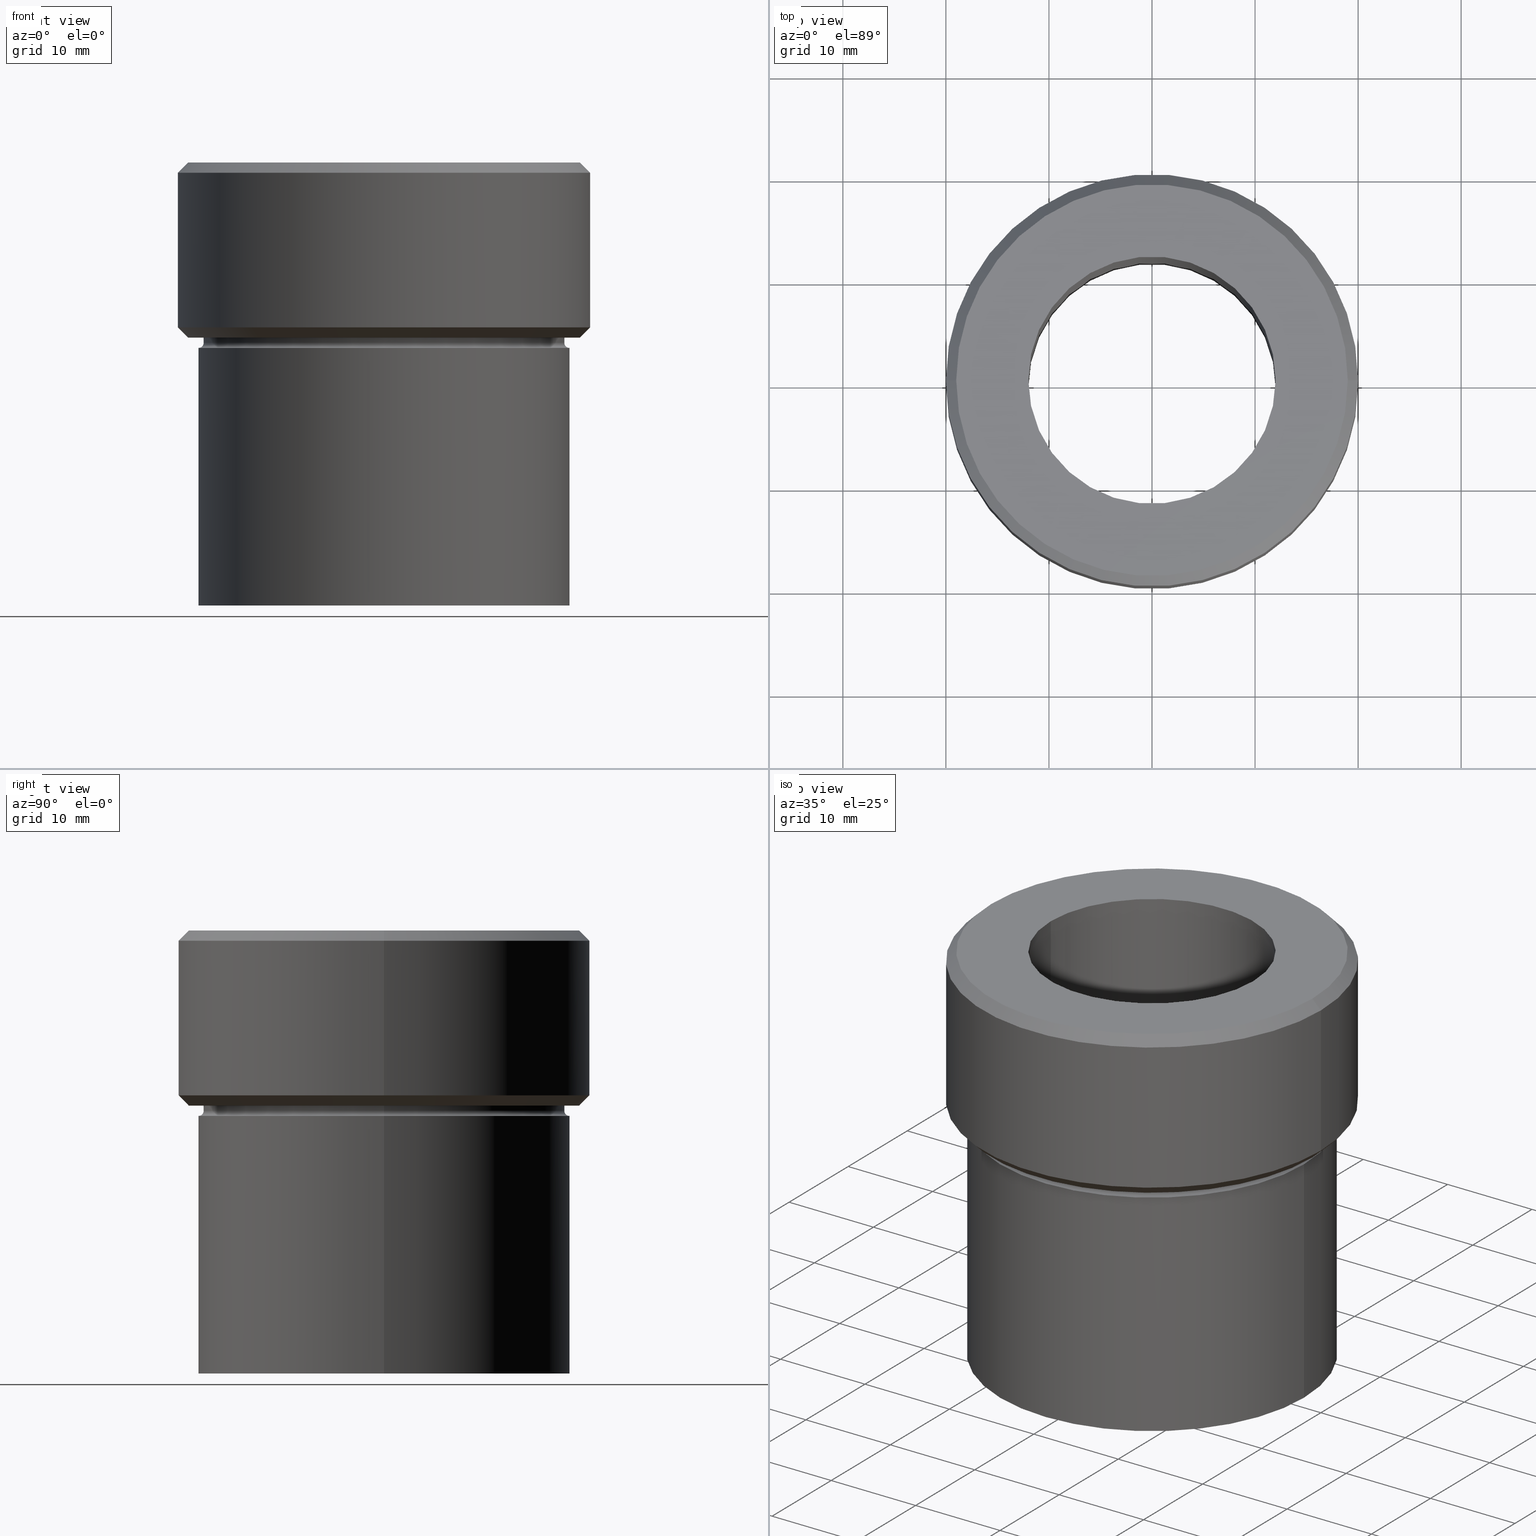
[diagram: canonical four-view strip — front | top / right | iso, engineering-drawing reading convention]
A machine part, canonical four-view strip (front | top / right | iso — engineering-drawing reading convention). The complete STEP part file that produces these views, byte-faithful:
ISO-10303-21;
HEADER;
FILE_DESCRIPTION (( 'STEP AP203' ),
    '1' );
FILE_NAME ('ad10.STEP',
    '2024-01-08T12:25:25',
    ( '' ),
    ( '' ),
    'SwSTEP 2.0',
    'SolidWorks 2019',
    '' );
FILE_SCHEMA (( 'CONFIG_CONTROL_DESIGN' ));
ENDSEC;

DATA;
#1 = EDGE_CURVE ( 'NONE', #331, #24, #38, .T. ) ;
#2 = CARTESIAN_POINT ( 'NONE',  ( -17.49999999999999645, 2.143131898507867854E-15, 0.000000000000000000 ) ) ;
#3 = AXIS2_PLACEMENT_3D ( 'NONE', #427, #395, #222 ) ;
#4 = AXIS2_PLACEMENT_3D ( 'NONE', #495, #94, #450 ) ;
#5 = VERTEX_POINT ( 'NONE', #58 ) ;
#6 = CARTESIAN_POINT ( 'NONE',  ( -12.00000000000000178, 1.469576158976824144E-15, -54.99999999999999289 ) ) ;
#7 = EDGE_LOOP ( 'NONE', ( #312, #87, #115, #275 ) ) ;
#8 = DIRECTION ( 'NONE',  ( -0.000000000000000000, -0.000000000000000000, 1.000000000000000000 ) ) ;
#9 = ORIENTED_EDGE ( 'NONE', *, *, #496, .F. ) ;
#10 = DIRECTION ( 'NONE',  ( -0.000000000000000000, -0.000000000000000000, 1.000000000000000000 ) ) ;
#11 = ORIENTED_EDGE ( 'NONE', *, *, #282, .T. ) ;
#12 = AXIS2_PLACEMENT_3D ( 'NONE', #287, #320, #318 ) ;
#13 = AXIS2_PLACEMENT_3D ( 'NONE', #267, #147, #467 ) ;
#14 = MECHANICAL_CONTEXT ( 'NONE', #219, 'mechanical' ) ;
#15 = EDGE_LOOP ( 'NONE', ( #244, #302 ) ) ;
#16 = PERSON_AND_ORGANIZATION ( #179, #359 ) ;
#17 = DIRECTION ( 'NONE',  ( -0.000000000000000000, -0.000000000000000000, 1.000000000000000000 ) ) ;
#18 = DIRECTION ( 'NONE',  ( 1.000000000000000000, 0.000000000000000000, 0.000000000000000000 ) ) ;
#19 = FACE_OUTER_BOUND ( 'NONE', #497, .T. ) ;
#20 = AXIS2_PLACEMENT_3D ( 'NONE', #148, #471, #431 ) ;
#21 = CIRCLE ( 'NONE', #13, 18.00000000000000355 ) ;
#22 = DATE_AND_TIME ( #57, #423 ) ;
#23 = DIRECTION ( 'NONE',  ( 1.000000000000000000, 0.000000000000000000, 0.000000000000000000 ) ) ;
#24 = VERTEX_POINT ( 'NONE', #67 ) ;
#25 = FACE_OUTER_BOUND ( 'NONE', #7, .T. ) ;
#26 = ADVANCED_FACE ( 'NONE', ( #228 ), #434, .T. ) ;
#27 = EDGE_LOOP ( 'NONE', ( #300, #136, #283, #263 ) ) ;
#28 = EDGE_LOOP ( 'NONE', ( #517, #291, #418, #472 ) ) ;
#29 = ORIENTED_EDGE ( 'NONE', *, *, #273, .F. ) ;
#30 = VECTOR ( 'NONE', #279, 1000.000000000000000 ) ;
#31 = AXIS2_PLACEMENT_3D ( 'NONE', #513, #308, #18 ) ;
#32 = CARTESIAN_POINT ( 'NONE',  ( 0.000000000000000000, 0.000000000000000000, 0.000000000000000000 ) ) ;
#33 = ORIENTED_EDGE ( 'NONE', *, *, #93, .T. ) ;
#34 = DESIGN_CONTEXT ( 'detailed design', #245, 'design' ) ;
#35 = EDGE_CURVE ( 'NONE', #5, #432, #145, .T. ) ;
#36 = DIRECTION ( 'NONE',  ( -0.000000000000000000, -0.000000000000000000, 1.000000000000000000 ) ) ;
#37 = CARTESIAN_POINT ( 'NONE',  ( 12.00000000000000178, 0.000000000000000000, -43.00000000000000000 ) ) ;
#38 = CIRCLE ( 'NONE', #200, 19.00000000000001066 ) ;
#39 = CIRCLE ( 'NONE', #4, 19.00000000000000355 ) ;
#40 = CARTESIAN_POINT ( 'NONE',  ( 0.000000000000000000, 0.000000000000000000, 0.000000000000000000 ) ) ;
#41 = FACE_OUTER_BOUND ( 'NONE', #170, .T. ) ;
#42 = DIRECTION ( 'NONE',  ( -0.000000000000000000, -0.000000000000000000, 1.000000000000000000 ) ) ;
#43 = VERTEX_POINT ( 'NONE', #180 ) ;
#44 = CC_DESIGN_PERSON_AND_ORGANIZATION_ASSIGNMENT ( #369, #120, ( #226 ) ) ;
#45 = CIRCLE ( 'NONE', #376, 17.49999999999999645 ) ;
#46 = DIRECTION ( 'NONE',  ( -0.000000000000000000, -0.000000000000000000, 1.000000000000000000 ) ) ;
#47 = TOROIDAL_SURFACE ( 'NONE', #519, 18.00000000000000000, 0.5000000000000000000 ) ;
#48 = ORIENTED_EDGE ( 'NONE', *, *, #307, .F. ) ;
#49 = EDGE_CURVE ( 'NONE', #271, #384, #501, .T. ) ;
#50 = CARTESIAN_POINT ( 'NONE',  ( -17.49999999999999645, 2.143131898507867854E-15, -17.00000000000000000 ) ) ;
#51 = ORIENTED_EDGE ( 'NONE', *, *, #307, .T. ) ;
#52 = DIRECTION ( 'NONE',  ( 0.000000000000000000, 0.000000000000000000, -1.000000000000000000 ) ) ;
#53 = VERTEX_POINT ( 'NONE', #61 ) ;
#54 = CARTESIAN_POINT ( 'NONE',  ( 0.000000000000000000, 0.000000000000000000, 0.000000000000000000 ) ) ;
#55 = ORIENTED_EDGE ( 'NONE', *, *, #351, .T. ) ;
#56 = VECTOR ( 'NONE', #306, 1000.000000000000000 ) ;
#57 = CALENDAR_DATE ( 2024, 8, 1 ) ;
#58 = CARTESIAN_POINT ( 'NONE',  ( -19.00000000000000355, 2.388061258337338939E-15, -17.00000000000000000 ) ) ;
#59 = ADVANCED_FACE ( 'NONE', ( #25 ), #389, .T. ) ;
#60 = DIRECTION ( 'NONE',  ( 0.000000000000000000, 0.000000000000000000, -1.000000000000000000 ) ) ;
#61 = CARTESIAN_POINT ( 'NONE',  ( 12.00000000000000178, 0.000000000000000000, 0.000000000000000000 ) ) ;
#62 = ADVANCED_FACE ( 'NONE', ( #69 ), #104, .F. ) ;
#63 = DIRECTION ( 'NONE',  ( -0.000000000000000000, -0.000000000000000000, 1.000000000000000000 ) ) ;
#64 = AXIS2_PLACEMENT_3D ( 'NONE', #32, #197, #445 ) ;
#65 = LOCAL_TIME ( 13, 25, 25.00000000000000000, #525 ) ;
#66 = DIRECTION ( 'NONE',  ( 1.000000000000000000, 0.000000000000000000, 0.000000000000000000 ) ) ;
#67 = CARTESIAN_POINT ( 'NONE',  ( 19.00000000000001066, 2.388061258337339728E-15, 0.000000000000000000 ) ) ;
#68 = ORIENTED_EDGE ( 'NONE', *, *, #518, .T. ) ;
#69 = FACE_OUTER_BOUND ( 'NONE', #252, .T. ) ;
#70 = APPROVAL ( #433, 'NEUR�EN�' ) ;
#71 = EDGE_LOOP ( 'NONE', ( #105, #132, #420, #193 ) ) ;
#72 = DIRECTION ( 'NONE',  ( -0.000000000000000000, -0.000000000000000000, 1.000000000000000000 ) ) ;
#73 = ORIENTED_EDGE ( 'NONE', *, *, #442, .T. ) ;
#74 = AXIS2_PLACEMENT_3D ( 'NONE', #341, #106, #304 ) ;
#75 = CARTESIAN_POINT ( 'NONE',  ( 0.000000000000000000, 0.000000000000000000, -17.49999999999999645 ) ) ;
#76 = PERSON_AND_ORGANIZATION ( #179, #359 ) ;
#77 = DIRECTION ( 'NONE',  ( -1.000000000000000000, 0.000000000000000000, 0.000000000000000000 ) ) ;
#78 = DIRECTION ( 'NONE',  ( 1.000000000000000000, 0.000000000000000000, 0.000000000000000000 ) ) ;
#79 = AXIS2_PLACEMENT_3D ( 'NONE', #161, #36, #523 ) ;
#80 = VECTOR ( 'NONE', #526, 1000.000000000000114 ) ;
#81 = CARTESIAN_POINT ( 'NONE',  ( -17.49999999999999645, 2.143131898507867854E-15, -17.49999999999999645 ) ) ;
#82 = EDGE_CURVE ( 'NONE', #432, #413, #398, .T. ) ;
#83 = CARTESIAN_POINT ( 'NONE',  ( -20.00000000000000000, 2.449293598294706513E-15, -16.00000000000000355 ) ) ;
#84 = ORIENTED_EDGE ( 'NONE', *, *, #194, .F. ) ;
#85 = CARTESIAN_POINT ( 'NONE',  ( 19.00000000000000355, 0.000000000000000000, -17.00000000000000000 ) ) ;
#86 = PRODUCT_DEFINITION_SHAPE ( 'NONE', 'NONE',  #238 ) ;
#87 = ORIENTED_EDGE ( 'NONE', *, *, #88, .F. ) ;
#88 = EDGE_CURVE ( 'NONE', #379, #5, #89, .T. ) ;
#89 = CIRCLE ( 'NONE', #408, 19.00000000000000355 ) ;
#90 = CARTESIAN_POINT ( 'NONE',  ( 19.00000000000001066, 2.326828918379972548E-15, 0.000000000000000000 ) ) ;
#91 = SECURITY_CLASSIFICATION ( '', '', #272 ) ;
#92 = ORIENTED_EDGE ( 'NONE', *, *, #377, .F. ) ;
#93 = EDGE_CURVE ( 'NONE', #451, #334, #173, .T. ) ;
#94 = DIRECTION ( 'NONE',  ( 0.000000000000000000, 0.000000000000000000, -1.000000000000000000 ) ) ;
#95 = EDGE_LOOP ( 'NONE', ( #476, #449, #117, #142 ) ) ;
#96 = DIRECTION ( 'NONE',  ( -0.000000000000000000, -0.000000000000000000, 1.000000000000000000 ) ) ;
#97 = VERTEX_POINT ( 'NONE', #311 ) ;
#98 = CARTESIAN_POINT ( 'NONE',  ( -20.00000000000000000, 2.449293598294706513E-15, -16.00000000000000355 ) ) ;
#99 = ADVANCED_FACE ( 'NONE', ( #140, #516 ), #462, .T. ) ;
#100 = DATE_AND_TIME ( #464, #192 ) ;
#101 = CARTESIAN_POINT ( 'NONE',  ( 0.000000000000000000, 0.000000000000000000, -54.99999999999999289 ) ) ;
#102 = APPROVAL ( #424, 'NEUR�EN�' ) ;
#103 = APPLICATION_PROTOCOL_DEFINITION ( 'international standard', 'config_control_design', 1994, #219 ) ;
#104 = CYLINDRICAL_SURFACE ( 'NONE', #416, 12.00000000000000178 ) ;
#105 = ORIENTED_EDGE ( 'NONE', *, *, #82, .F. ) ;
#106 = DIRECTION ( 'NONE',  ( -0.000000000000000000, -0.000000000000000000, 1.000000000000000000 ) ) ;
#107 = CARTESIAN_POINT ( 'NONE',  ( -18.00000000000000000, 2.204364238465235428E-15, -17.49999999999999645 ) ) ;
#108 = AXIS2_PLACEMENT_3D ( 'NONE', #239, #286, #77 ) ;
#109 = CIRCLE ( 'NONE', #474, 20.00000000000000000 ) ;
#110 = EDGE_LOOP ( 'NONE', ( #355, #213, #168, #375 ) ) ;
#111 =( NAMED_UNIT ( * ) SI_UNIT ( $, .STERADIAN. ) SOLID_ANGLE_UNIT ( ) );
#112 = ORIENTED_EDGE ( 'NONE', *, *, #485, .T. ) ;
#113 = ORIENTED_EDGE ( 'NONE', *, *, #93, .F. ) ;
#114 = CARTESIAN_POINT ( 'NONE',  ( 20.00000000000000000, 0.000000000000000000, 0.000000000000000000 ) ) ;
#115 = ORIENTED_EDGE ( 'NONE', *, *, #313, .T. ) ;
#116 = DIRECTION ( 'NONE',  ( -0.000000000000000000, -0.000000000000000000, 1.000000000000000000 ) ) ;
#117 = ORIENTED_EDGE ( 'NONE', *, *, #409, .T. ) ;
#118 = VECTOR ( 'NONE', #387, 1000.000000000000114 ) ;
#119 = CIRCLE ( 'NONE', #502, 0.5000000000000004441 ) ;
#120 = PERSON_AND_ORGANIZATION_ROLE ( 'design_supplier' ) ;
#121 = DIRECTION ( 'NONE',  ( -0.000000000000000000, -0.000000000000000000, 1.000000000000000000 ) ) ;
#122 = DIRECTION ( 'NONE',  ( -0.000000000000000000, -0.000000000000000000, 1.000000000000000000 ) ) ;
#123 = EDGE_CURVE ( 'NONE', #334, #451, #45, .T. ) ;
#124 = LINE ( 'NONE', #529, #30 ) ;
#125 = CIRCLE ( 'NONE', #166, 18.00000000000000000 ) ;
#126 = DIRECTION ( 'NONE',  ( -0.000000000000000000, -0.000000000000000000, 1.000000000000000000 ) ) ;
#127 = ORIENTED_EDGE ( 'NONE', *, *, #466, .F. ) ;
#128 = LINE ( 'NONE', #337, #346 ) ;
#129 = ORIENTED_EDGE ( 'NONE', *, *, #82, .T. ) ;
#130 = EDGE_CURVE ( 'NONE', #271, #43, #508, .T. ) ;
#131 = FACE_BOUND ( 'NONE', #458, .T. ) ;
#132 = ORIENTED_EDGE ( 'NONE', *, *, #332, .T. ) ;
#133 = CIRCLE ( 'NONE', #314, 12.00000000000000178 ) ;
#134 = DIRECTION ( 'NONE',  ( 1.000000000000000000, 0.000000000000000000, 0.000000000000000000 ) ) ;
#135 = AXIS2_PLACEMENT_3D ( 'NONE', #254, #292, #301 ) ;
#136 = ORIENTED_EDGE ( 'NONE', *, *, #377, .T. ) ;
#137 = CARTESIAN_POINT ( 'NONE',  ( -18.00000000000000000, 2.204364238465235428E-15, -18.00000000000000000 ) ) ;
#138 = ORIENTED_EDGE ( 'NONE', *, *, #409, .F. ) ;
#139 = APPLICATION_PROTOCOL_DEFINITION ( 'international standard', 'config_control_design', 1994, #245 ) ;
#140 = FACE_BOUND ( 'NONE', #15, .T. ) ;
#141 = PERSON_AND_ORGANIZATION_ROLE ( 'creator' ) ;
#142 = ORIENTED_EDGE ( 'NONE', *, *, #482, .T. ) ;
#143 = CONICAL_SURFACE ( 'NONE', #335, 19.00000000000001066, 0.7853981633974482790 ) ;
#144 = AXIS2_PLACEMENT_3D ( 'NONE', #489, #46, #204 ) ;
#145 = LINE ( 'NONE', #98, #343 ) ;
#146 = ADVANCED_FACE ( 'NONE', ( #19 ), #143, .T. ) ;
#147 = DIRECTION ( 'NONE',  ( -0.000000000000000000, -0.000000000000000000, 1.000000000000000000 ) ) ;
#148 = CARTESIAN_POINT ( 'NONE',  ( 0.000000000000000000, 0.000000000000000000, -43.00000000000000000 ) ) ;
#149 = ORIENTED_EDGE ( 'NONE', *, *, #392, .T. ) ;
#150 = CARTESIAN_POINT ( 'NONE',  ( 0.000000000000000000, 0.000000000000000000, -17.00000000000000000 ) ) ;
#151 = AXIS2_PLACEMENT_3D ( 'NONE', #412, #328, #378 ) ;
#152 = PERSON_AND_ORGANIZATION_ROLE ( 'creator' ) ;
#153 = DIRECTION ( 'NONE',  ( 1.000000000000000000, 0.000000000000000000, 0.000000000000000000 ) ) ;
#154 = EDGE_CURVE ( 'NONE', #178, #293, #268, .T. ) ;
#155 = DIRECTION ( 'NONE',  ( -0.000000000000000000, -0.000000000000000000, 1.000000000000000000 ) ) ;
#156 = DATE_AND_TIME ( #528, #456 ) ;
#157 = LINE ( 'NONE', #484, #288 ) ;
#158 = CLOSED_SHELL ( 'NONE', ( #437, #371, #146, #527, #236, #231, #26, #319, #364, #403, #422, #264, #99, #59, #477, #324, #62 ) ) ;
#159 = CC_DESIGN_APPROVAL ( #102, ( #238 ) ) ;
#160 = CALENDAR_DATE ( 2024, 8, 1 ) ;
#161 = CARTESIAN_POINT ( 'NONE',  ( 0.000000000000000000, 0.000000000000000000, 0.000000000000000000 ) ) ;
#162 = EDGE_CURVE ( 'NONE', #255, #360, #259, .T. ) ;
#163 = FACE_OUTER_BOUND ( 'NONE', #479, .T. ) ;
#164 = CARTESIAN_POINT ( 'NONE',  ( 17.49999999999999645, 0.000000000000000000, -17.49999999999999645 ) ) ;
#165 = AXIS2_PLACEMENT_3D ( 'NONE', #276, #407, #199 ) ;
#166 = AXIS2_PLACEMENT_3D ( 'NONE', #417, #96, #299 ) ;
#167 = FACE_OUTER_BOUND ( 'NONE', #71, .T. ) ;
#168 = ORIENTED_EDGE ( 'NONE', *, *, #482, .F. ) ;
#169 = CYLINDRICAL_SURFACE ( 'NONE', #135, 20.00000000000000000 ) ;
#170 = EDGE_LOOP ( 'NONE', ( #196, #55 ) ) ;
#171 = DIRECTION ( 'NONE',  ( 1.000000000000000000, 0.000000000000000000, 0.000000000000000000 ) ) ;
#172 = ORIENTED_EDGE ( 'NONE', *, *, #452, .F. ) ;
#173 = CIRCLE ( 'NONE', #280, 17.49999999999999645 ) ;
#174 = FACE_OUTER_BOUND ( 'NONE', #211, .T. ) ;
#175 = CIRCLE ( 'NONE', #491, 20.00000000000000000 ) ;
#176 = EDGE_LOOP ( 'NONE', ( #112, #149, #415, #277 ) ) ;
#177 = DIRECTION ( 'NONE',  ( 1.000000000000000000, 0.000000000000000000, 0.000000000000000000 ) ) ;
#178 = VERTEX_POINT ( 'NONE', #520 ) ;
#179 = PERSON ( 'NEUR�EN�', 'NEUR�EN�', 'NEUR�EN�', ('NEUR�EN�'), ('NEUR�EN�'), ('NEUR�EN�') ) ;
#180 = CARTESIAN_POINT ( 'NONE',  ( 18.00000000000000000, 0.000000000000000000, -18.00000000000000000 ) ) ;
#181 = CARTESIAN_POINT ( 'NONE',  ( 0.000000000000000000, 0.000000000000000000, -16.00000000000000355 ) ) ;
#182 = AXIS2_PLACEMENT_3D ( 'NONE', #261, #342, #218 ) ;
#183 = EDGE_CURVE ( 'NONE', #266, #432, #224, .T. ) ;
#184 = DIRECTION ( 'NONE',  ( 0.000000000000000000, 0.000000000000000000, -1.000000000000000000 ) ) ;
#185 = VECTOR ( 'NONE', #251, 1000.000000000000114 ) ;
#186 = APPROVAL_ROLE ( '' ) ;
#187 = DIRECTION ( 'NONE',  ( -1.000000000000000000, 0.000000000000000000, 0.000000000000000000 ) ) ;
#188 = ORIENTED_EDGE ( 'NONE', *, *, #1, .T. ) ;
#189 = CARTESIAN_POINT ( 'NONE',  ( 0.000000000000000000, 0.000000000000000000, 0.000000000000000000 ) ) ;
#190 = DIRECTION ( 'NONE',  ( 1.000000000000000000, 0.000000000000000000, 0.000000000000000000 ) ) ;
#191 = DIRECTION ( 'NONE',  ( -0.000000000000000000, -0.000000000000000000, 1.000000000000000000 ) ) ;
#192 = LOCAL_TIME ( 13, 25, 25.00000000000000000, #349 ) ;
#193 = ORIENTED_EDGE ( 'NONE', *, *, #220, .T. ) ;
#194 = EDGE_CURVE ( 'NONE', #255, #383, #524, .T. ) ;
#195 = DIRECTION ( 'NONE',  ( -0.000000000000000000, -0.000000000000000000, 1.000000000000000000 ) ) ;
#196 = ORIENTED_EDGE ( 'NONE', *, *, #88, .T. ) ;
#197 = DIRECTION ( 'NONE',  ( -0.000000000000000000, -0.000000000000000000, 1.000000000000000000 ) ) ;
#198 = APPROVAL_ROLE ( '' ) ;
#199 = DIRECTION ( 'NONE',  ( 1.000000000000000000, 0.000000000000000000, 0.000000000000000000 ) ) ;
#200 = AXIS2_PLACEMENT_3D ( 'NONE', #348, #303, #353 ) ;
#201 = DATE_AND_TIME ( #278, #270 ) ;
#202 = DIRECTION ( 'NONE',  ( 1.000000000000000000, 0.000000000000000000, 0.000000000000000000 ) ) ;
#203 = PLANE ( 'NONE',  #316 ) ;
#204 = DIRECTION ( 'NONE',  ( 1.000000000000000000, 0.000000000000000000, 0.000000000000000000 ) ) ;
#205 = ORIENTED_EDGE ( 'NONE', *, *, #297, .F. ) ;
#206 = EDGE_CURVE ( 'NONE', #293, #53, #124, .T. ) ;
#207 = APPROVAL_PERSON_ORGANIZATION ( #461, #102, #217 ) ;
#208 = DIRECTION ( 'NONE',  ( -0.000000000000000000, -0.000000000000000000, 1.000000000000000000 ) ) ;
#209 = EDGE_LOOP ( 'NONE', ( #315, #460 ) ) ;
#210 = CARTESIAN_POINT ( 'NONE',  ( 0.000000000000000000, 0.000000000000000000, 0.000000000000000000 ) ) ;
#211 = EDGE_LOOP ( 'NONE', ( #399, #396, #11, #113 ) ) ;
#212 = CARTESIAN_POINT ( 'NONE',  ( -20.00000000000000000, 2.449293598294706513E-15, -0.9999999999999904521 ) ) ;
#213 = ORIENTED_EDGE ( 'NONE', *, *, #411, .T. ) ;
#214 = CARTESIAN_POINT ( 'NONE',  ( -19.00000000000001066, 0.000000000000000000, 0.000000000000000000 ) ) ;
#215 = AXIS2_PLACEMENT_3D ( 'NONE', #40, #242, #202 ) ;
#216 = ORIENTED_EDGE ( 'NONE', *, *, #340, .T. ) ;
#217 = APPROVAL_ROLE ( '' ) ;
#218 = DIRECTION ( 'NONE',  ( -1.000000000000000000, 0.000000000000000000, -0.000000000000000000 ) ) ;
#219 = APPLICATION_CONTEXT ( 'configuration controlled 3d designs of mechanical parts and assemblies' ) ;
#220 = EDGE_CURVE ( 'NONE', #352, #413, #240, .T. ) ;
#221 = APPROVAL_STATUS ( 'not_yet_approved' ) ;
#222 = DIRECTION ( 'NONE',  ( 1.000000000000000000, 0.000000000000000000, 0.000000000000000000 ) ) ;
#223 = FACE_OUTER_BOUND ( 'NONE', #402, .T. ) ;
#224 = CIRCLE ( 'NONE', #108, 20.00000000000000000 ) ;
#225 = CARTESIAN_POINT ( 'NONE',  ( 0.000000000000000000, 0.000000000000000000, 0.000000000000000000 ) ) ;
#226 = PRODUCT_DEFINITION_FORMATION_WITH_SPECIFIED_SOURCE ( 'LIBOVOLN�', '', #246, .NOT_KNOWN. ) ;
#227 = DIRECTION ( 'NONE',  ( -1.000000000000000000, 0.000000000000000000, 0.000000000000000000 ) ) ;
#228 = FACE_OUTER_BOUND ( 'NONE', #498, .T. ) ;
#229 = APPROVAL_DATE_TIME ( #201, #444 ) ;
#230 = DIRECTION ( 'NONE',  ( 1.000000000000000000, 0.000000000000000000, 0.000000000000000000 ) ) ;
#231 = ADVANCED_FACE ( 'NONE', ( #441 ), #488, .T. ) ;
#232 = PERSON_AND_ORGANIZATION ( #179, #359 ) ;
#233 = DIRECTION ( 'NONE',  ( 1.000000000000000000, 0.000000000000000000, 0.000000000000000000 ) ) ;
#234 = VECTOR ( 'NONE', #10, 1000.000000000000000 ) ;
#235 = FACE_OUTER_BOUND ( 'NONE', #110, .T. ) ;
#236 = ADVANCED_FACE ( 'NONE', ( #235 ), #487, .T. ) ;
#237 = DIRECTION ( 'NONE',  ( 1.000000000000000000, 0.000000000000000000, 0.000000000000000000 ) ) ;
#238 = PRODUCT_DEFINITION ( 'NEZN�M�', '', #226, #34 ) ;
#239 = CARTESIAN_POINT ( 'NONE',  ( 0.000000000000000000, 0.000000000000000000, -16.00000000000000355 ) ) ;
#240 = CIRCLE ( 'NONE', #12, 20.00000000000000000 ) ;
#241 = CONICAL_SURFACE ( 'NONE', #250, 19.00000000000001066, 0.7853981633974482790 ) ;
#242 = DIRECTION ( 'NONE',  ( 0.000000000000000000, -0.000000000000000000, 1.000000000000000000 ) ) ;
#243 = CYLINDRICAL_SURFACE ( 'NONE', #151, 12.00000000000000178 ) ;
#244 = ORIENTED_EDGE ( 'NONE', *, *, #253, .T. ) ;
#245 = APPLICATION_CONTEXT ( 'configuration controlled 3d designs of mechanical parts and assemblies' ) ;
#246 = PRODUCT ( 'ad10', 'ad10', '', ( #14 ) ) ;
#247 = DIRECTION ( 'NONE',  ( 0.000000000000000000, 0.000000000000000000, -1.000000000000000000 ) ) ;
#248 = EDGE_LOOP ( 'NONE', ( #48, #29 ) ) ;
#249 = CC_DESIGN_PERSON_AND_ORGANIZATION_ASSIGNMENT ( #16, #141, ( #238 ) ) ;
#250 = AXIS2_PLACEMENT_3D ( 'NONE', #189, #60, #227 ) ;
#251 = DIRECTION ( 'NONE',  ( 0.7071067811865474617, 8.659560562354932858E-17, -0.7071067811865474617 ) ) ;
#252 = EDGE_LOOP ( 'NONE', ( #92, #438, #295, #51 ) ) ;
#253 = EDGE_CURVE ( 'NONE', #293, #178, #133, .T. ) ;
#254 = CARTESIAN_POINT ( 'NONE',  ( 0.000000000000000000, 0.000000000000000000, 0.000000000000000000 ) ) ;
#255 = VERTEX_POINT ( 'NONE', #81 ) ;
#256 = LINE ( 'NONE', #6, #234 ) ;
#257 = CC_DESIGN_PERSON_AND_ORGANIZATION_ASSIGNMENT ( #475, #505, ( #246 ) ) ;
#258 = ORIENTED_EDGE ( 'NONE', *, *, #411, .F. ) ;
#259 = CIRCLE ( 'NONE', #455, 0.5000000000000004441 ) ;
#260 = AXIS2_PLACEMENT_3D ( 'NONE', #210, #380, #171 ) ;
#261 = CARTESIAN_POINT ( 'NONE',  ( 0.000000000000000000, 18.00000000000000355, -43.00000000000000000 ) ) ;
#262 = DATE_TIME_ROLE ( 'creation_date' ) ;
#263 = ORIENTED_EDGE ( 'NONE', *, *, #206, .F. ) ;
#264 = ADVANCED_FACE ( 'NONE', ( #163 ), #365, .T. ) ;
#265 = DIRECTION ( 'NONE',  ( 1.000000000000000000, 0.000000000000000000, 0.000000000000000000 ) ) ;
#266 = VERTEX_POINT ( 'NONE', #443 ) ;
#267 = CARTESIAN_POINT ( 'NONE',  ( 0.000000000000000000, 0.000000000000000000, -43.00000000000000000 ) ) ;
#268 = CIRCLE ( 'NONE', #20, 12.00000000000000178 ) ;
#269 = DIRECTION ( 'NONE',  ( 1.224646799147353207E-16, 1.000000000000000000, 0.000000000000000000 ) ) ;
#270 = LOCAL_TIME ( 13, 25, 25.00000000000000000, #345 ) ;
#271 = VERTEX_POINT ( 'NONE', #439 ) ;
#272 = SECURITY_CLASSIFICATION_LEVEL ( 'unclassified' ) ;
#273 = EDGE_CURVE ( 'NONE', #97, #53, #296, .T. ) ;
#274 = DIRECTION ( 'NONE',  ( -0.000000000000000000, -0.000000000000000000, 1.000000000000000000 ) ) ;
#275 = ORIENTED_EDGE ( 'NONE', *, *, #332, .F. ) ;
#276 = CARTESIAN_POINT ( 'NONE',  ( 0.000000000000000000, 0.000000000000000000, 0.000000000000000000 ) ) ;
#277 = ORIENTED_EDGE ( 'NONE', *, *, #282, .F. ) ;
#278 = CALENDAR_DATE ( 2024, 8, 1 ) ;
#279 = DIRECTION ( 'NONE',  ( -0.000000000000000000, -0.000000000000000000, 1.000000000000000000 ) ) ;
#280 = AXIS2_PLACEMENT_3D ( 'NONE', #150, #428, #190 ) ;
#281 = CC_DESIGN_APPROVAL ( #444, ( #226 ) ) ;
#282 = EDGE_CURVE ( 'NONE', #383, #334, #157, .T. ) ;
#283 = ORIENTED_EDGE ( 'NONE', *, *, #273, .T. ) ;
#284 = DATE_AND_TIME ( #160, #65 ) ;
#285 = LINE ( 'NONE', #114, #357 ) ;
#286 = DIRECTION ( 'NONE',  ( -0.000000000000000000, -0.000000000000000000, 1.000000000000000000 ) ) ;
#287 = CARTESIAN_POINT ( 'NONE',  ( 0.000000000000000000, 0.000000000000000000, -0.9999999999999904521 ) ) ;
#288 = VECTOR ( 'NONE', #116, 1000.000000000000000 ) ;
#289 = VECTOR ( 'NONE', #208, 1000.000000000000000 ) ;
#290 = FACE_OUTER_BOUND ( 'NONE', #27, .T. ) ;
#291 = ORIENTED_EDGE ( 'NONE', *, *, #1, .F. ) ;
#292 = DIRECTION ( 'NONE',  ( -0.000000000000000000, -0.000000000000000000, 1.000000000000000000 ) ) ;
#293 = VERTEX_POINT ( 'NONE', #37 ) ;
#294 = DIRECTION ( 'NONE',  ( -1.000000000000000000, 0.000000000000000000, -0.000000000000000000 ) ) ;
#295 = ORIENTED_EDGE ( 'NONE', *, *, #206, .T. ) ;
#296 = CIRCLE ( 'NONE', #326, 12.00000000000000178 ) ;
#297 = EDGE_CURVE ( 'NONE', #266, #352, #285, .T. ) ;
#298 = APPROVAL_PERSON_ORGANIZATION ( #76, #70, #198 ) ;
#299 = DIRECTION ( 'NONE',  ( 1.000000000000000000, 0.000000000000000000, 0.000000000000000000 ) ) ;
#300 = ORIENTED_EDGE ( 'NONE', *, *, #154, .F. ) ;
#301 = DIRECTION ( 'NONE',  ( 1.000000000000000000, 0.000000000000000000, 0.000000000000000000 ) ) ;
#302 = ORIENTED_EDGE ( 'NONE', *, *, #154, .T. ) ;
#303 = DIRECTION ( 'NONE',  ( -0.000000000000000000, -0.000000000000000000, 1.000000000000000000 ) ) ;
#304 = DIRECTION ( 'NONE',  ( 1.000000000000000000, 0.000000000000000000, 0.000000000000000000 ) ) ;
#305 = TOROIDAL_SURFACE ( 'NONE', #483, 18.00000000000000000, 0.5000000000000000000 ) ;
#306 = DIRECTION ( 'NONE',  ( -0.000000000000000000, -0.000000000000000000, 1.000000000000000000 ) ) ;
#307 = EDGE_CURVE ( 'NONE', #53, #97, #400, .T. ) ;
#308 = DIRECTION ( 'NONE',  ( -0.000000000000000000, -0.000000000000000000, 1.000000000000000000 ) ) ;
#309 = DIRECTION ( 'NONE',  ( 0.000000000000000000, 0.000000000000000000, -1.000000000000000000 ) ) ;
#310 = PRODUCT_RELATED_PRODUCT_CATEGORY ( 'detail', '', ( #246 ) ) ;
#311 = CARTESIAN_POINT ( 'NONE',  ( -12.00000000000000178, 1.469576158976824144E-15, 0.000000000000000000 ) ) ;
#312 = ORIENTED_EDGE ( 'NONE', *, *, #35, .F. ) ;
#313 = EDGE_CURVE ( 'NONE', #379, #266, #481, .T. ) ;
#314 = AXIS2_PLACEMENT_3D ( 'NONE', #401, #121, #404 ) ;
#315 = ORIENTED_EDGE ( 'NONE', *, *, #49, .F. ) ;
#316 = AXIS2_PLACEMENT_3D ( 'NONE', #414, #52, #294 ) ;
#317 = ORIENTED_EDGE ( 'NONE', *, *, #183, .F. ) ;
#318 = DIRECTION ( 'NONE',  ( 1.000000000000000000, 0.000000000000000000, 0.000000000000000000 ) ) ;
#319 = ADVANCED_FACE ( 'NONE', ( #323, #521 ), #322, .T. ) ;
#320 = DIRECTION ( 'NONE',  ( 0.000000000000000000, 0.000000000000000000, -1.000000000000000000 ) ) ;
#321 =( GEOMETRIC_REPRESENTATION_CONTEXT ( 3 ) GLOBAL_UNCERTAINTY_ASSIGNED_CONTEXT ( ( #494 ) ) GLOBAL_UNIT_ASSIGNED_CONTEXT ( ( #507, #515, #111 ) ) REPRESENTATION_CONTEXT ( 'NONE', 'WORKASPACE' ) );
#322 = PLANE ( 'NONE',  #215 ) ;
#323 = FACE_BOUND ( 'NONE', #248, .T. ) ;
#324 = ADVANCED_FACE ( 'NONE', ( #370 ), #47, .F. ) ;
#325 = CARTESIAN_POINT ( 'NONE',  ( 18.00000000000000000, 0.000000000000000000, -17.49999999999999645 ) ) ;
#326 = AXIS2_PLACEMENT_3D ( 'NONE', #478, #122, #78 ) ;
#327 = AXIS2_PLACEMENT_3D ( 'NONE', #181, #430, #66 ) ;
#328 = DIRECTION ( 'NONE',  ( -0.000000000000000000, -0.000000000000000000, 1.000000000000000000 ) ) ;
#329 = ORIENTED_EDGE ( 'NONE', *, *, #340, .F. ) ;
#330 = LINE ( 'NONE', #90, #185 ) ;
#331 = VERTEX_POINT ( 'NONE', #410 ) ;
#332 = EDGE_CURVE ( 'NONE', #432, #266, #109, .T. ) ;
#333 = CARTESIAN_POINT ( 'NONE',  ( 0.000000000000000000, 0.000000000000000000, -0.9999999999999904521 ) ) ;
#334 = VERTEX_POINT ( 'NONE', #374 ) ;
#335 = AXIS2_PLACEMENT_3D ( 'NONE', #350, #184, #514 ) ;
#336 = CIRCLE ( 'NONE', #74, 18.00000000000000000 ) ;
#337 = CARTESIAN_POINT ( 'NONE',  ( -18.00000000000000355, 2.204364238465235822E-15, 0.000000000000000000 ) ) ;
#338 = ORIENTED_EDGE ( 'NONE', *, *, #351, .F. ) ;
#339 = CARTESIAN_POINT ( 'NONE',  ( -20.00000000000000000, 2.449293598294706513E-15, 0.000000000000000000 ) ) ;
#340 = EDGE_CURVE ( 'NONE', #360, #43, #125, .T. ) ;
#341 = CARTESIAN_POINT ( 'NONE',  ( 0.000000000000000000, 0.000000000000000000, -18.00000000000000000 ) ) ;
#342 = DIRECTION ( 'NONE',  ( 0.000000000000000000, 0.000000000000000000, -1.000000000000000000 ) ) ;
#343 = VECTOR ( 'NONE', #388, 1000.000000000000114 ) ;
#344 = AXIS2_PLACEMENT_3D ( 'NONE', #225, #511, #468 ) ;
#345 = COORDINATED_UNIVERSAL_TIME_OFFSET ( 1, 0, .AHEAD. ) ;
#346 = VECTOR ( 'NONE', #126, 1000.000000000000000 ) ;
#347 = CC_DESIGN_PERSON_AND_ORGANIZATION_ASSIGNMENT ( #232, #397, ( #91 ) ) ;
#348 = CARTESIAN_POINT ( 'NONE',  ( 0.000000000000000000, 0.000000000000000000, 0.000000000000000000 ) ) ;
#349 = COORDINATED_UNIVERSAL_TIME_OFFSET ( 1, 0, .AHEAD. ) ;
#350 = CARTESIAN_POINT ( 'NONE',  ( 0.000000000000000000, 0.000000000000000000, 0.000000000000000000 ) ) ;
#351 = EDGE_CURVE ( 'NONE', #5, #379, #39, .T. ) ;
#352 = VERTEX_POINT ( 'NONE', #530 ) ;
#353 = DIRECTION ( 'NONE',  ( 1.000000000000000000, 0.000000000000000000, 0.000000000000000000 ) ) ;
#354 = CC_DESIGN_PERSON_AND_ORGANIZATION_ASSIGNMENT ( #480, #152, ( #226 ) ) ;
#355 = ORIENTED_EDGE ( 'NONE', *, *, #49, .T. ) ;
#356 = APPROVAL_DATE_TIME ( #284, #70 ) ;
#357 = VECTOR ( 'NONE', #195, 1000.000000000000000 ) ;
#358 = DIRECTION ( 'NONE',  ( -1.000000000000000000, 1.224646799147349509E-16, 0.000000000000000000 ) ) ;
#359 = ORGANIZATION ( 'NEUR�EN�', 'NEUR�EN�', '' ) ;
#360 = VERTEX_POINT ( 'NONE', #137 ) ;
#361 = CARTESIAN_POINT ( 'NONE',  ( 0.000000000000000000, 0.000000000000000000, -16.00000000000000355 ) ) ;
#362 = ORIENTED_EDGE ( 'NONE', *, *, #162, .T. ) ;
#363 = MANIFOLD_SOLID_BREP ( 'Odebrat vysunut�m1', #158 ) ;
#364 = ADVANCED_FACE ( 'NONE', ( #167 ), #169, .T. ) ;
#365 = CYLINDRICAL_SURFACE ( 'NONE', #79, 18.00000000000000355 ) ;
#366 = CARTESIAN_POINT ( 'NONE',  ( 20.00000000000000000, 0.000000000000000000, -16.00000000000000355 ) ) ;
#367 = AXIS2_PLACEMENT_3D ( 'NONE', #405, #155, #153 ) ;
#368 = CC_DESIGN_APPROVAL ( #70, ( #91 ) ) ;
#369 = PERSON_AND_ORGANIZATION ( #179, #359 ) ;
#370 = FACE_OUTER_BOUND ( 'NONE', #95, .T. ) ;
#371 = ADVANCED_FACE ( 'NONE', ( #453 ), #305, .F. ) ;
#372 = DIRECTION ( 'NONE',  ( 0.000000000000000000, -1.000000000000000000, 0.000000000000000000 ) ) ;
#373 = EDGE_LOOP ( 'NONE', ( #188, #500 ) ) ;
#374 = CARTESIAN_POINT ( 'NONE',  ( 17.49999999999999645, 0.000000000000000000, -17.00000000000000000 ) ) ;
#375 = ORIENTED_EDGE ( 'NONE', *, *, #130, .F. ) ;
#376 = AXIS2_PLACEMENT_3D ( 'NONE', #425, #386, #23 ) ;
#377 = EDGE_CURVE ( 'NONE', #178, #97, #256, .T. ) ;
#378 = DIRECTION ( 'NONE',  ( 1.000000000000000000, 0.000000000000000000, 0.000000000000000000 ) ) ;
#379 = VERTEX_POINT ( 'NONE', #85 ) ;
#380 = DIRECTION ( 'NONE',  ( -0.000000000000000000, -0.000000000000000000, 1.000000000000000000 ) ) ;
#381 = ORIENTED_EDGE ( 'NONE', *, *, #35, .T. ) ;
#382 = DIRECTION ( 'NONE',  ( -1.000000000000000000, 0.000000000000000000, 0.000000000000000000 ) ) ;
#383 = VERTEX_POINT ( 'NONE', #164 ) ;
#384 = VERTEX_POINT ( 'NONE', #459 ) ;
#385 = APPROVAL_DATE_TIME ( #22, #102 ) ;
#386 = DIRECTION ( 'NONE',  ( -0.000000000000000000, -0.000000000000000000, 1.000000000000000000 ) ) ;
#387 = DIRECTION ( 'NONE',  ( -0.7071067811865474617, 0.000000000000000000, -0.7071067811865474617 ) ) ;
#388 = DIRECTION ( 'NONE',  ( -0.7071067811865474617, 8.659560562354932858E-17, 0.7071067811865474617 ) ) ;
#389 = CONICAL_SURFACE ( 'NONE', #490, 20.00000000000000000, 0.7853981633974482790 ) ;
#390 = AXIS2_PLACEMENT_3D ( 'NONE', #54, #510, #177 ) ;
#391 = COORDINATED_UNIVERSAL_TIME_OFFSET ( 1, 0, .AHEAD. ) ;
#392 = EDGE_CURVE ( 'NONE', #255, #451, #419, .T. ) ;
#393 = CARTESIAN_POINT ( 'NONE',  ( 0.000000000000000000, 0.000000000000000000, -16.00000000000000355 ) ) ;
#394 = LINE ( 'NONE', #214, #118 ) ;
#395 = DIRECTION ( 'NONE',  ( -0.000000000000000000, -0.000000000000000000, 1.000000000000000000 ) ) ;
#396 = ORIENTED_EDGE ( 'NONE', *, *, #194, .T. ) ;
#397 = PERSON_AND_ORGANIZATION_ROLE ( 'classification_officer' ) ;
#398 = LINE ( 'NONE', #339, #56 ) ;
#399 = ORIENTED_EDGE ( 'NONE', *, *, #392, .F. ) ;
#400 = CIRCLE ( 'NONE', #165, 12.00000000000000178 ) ;
#401 = CARTESIAN_POINT ( 'NONE',  ( 0.000000000000000000, 0.000000000000000000, -43.00000000000000000 ) ) ;
#402 = EDGE_LOOP ( 'NONE', ( #338, #381, #317, #435 ) ) ;
#403 = ADVANCED_FACE ( 'NONE', ( #41, #131 ), #203, .T. ) ;
#404 = DIRECTION ( 'NONE',  ( -1.000000000000000000, 0.000000000000000000, 0.000000000000000000 ) ) ;
#405 = CARTESIAN_POINT ( 'NONE',  ( 0.000000000000000000, 0.000000000000000000, 0.000000000000000000 ) ) ;
#406 = DATE_TIME_ROLE ( 'classification_date' ) ;
#407 = DIRECTION ( 'NONE',  ( -0.000000000000000000, -0.000000000000000000, 1.000000000000000000 ) ) ;
#408 = AXIS2_PLACEMENT_3D ( 'NONE', #506, #309, #187 ) ;
#409 = EDGE_CURVE ( 'NONE', #383, #43, #119, .T. ) ;
#410 = CARTESIAN_POINT ( 'NONE',  ( -19.00000000000001066, 0.000000000000000000, 0.000000000000000000 ) ) ;
#411 = EDGE_CURVE ( 'NONE', #384, #360, #128, .T. ) ;
#412 = CARTESIAN_POINT ( 'NONE',  ( 0.000000000000000000, 0.000000000000000000, -54.99999999999999289 ) ) ;
#413 = VERTEX_POINT ( 'NONE', #212 ) ;
#414 = CARTESIAN_POINT ( 'NONE',  ( 0.000000000000000000, 20.00000000000000000, -17.00000000000000000 ) ) ;
#415 = ORIENTED_EDGE ( 'NONE', *, *, #123, .F. ) ;
#416 = AXIS2_PLACEMENT_3D ( 'NONE', #101, #17, #265 ) ;
#417 = CARTESIAN_POINT ( 'NONE',  ( 0.000000000000000000, 0.000000000000000000, -18.00000000000000000 ) ) ;
#418 = ORIENTED_EDGE ( 'NONE', *, *, #496, .T. ) ;
#419 = LINE ( 'NONE', #2, #289 ) ;
#420 = ORIENTED_EDGE ( 'NONE', *, *, #297, .T. ) ;
#421 = ORIENTED_EDGE ( 'NONE', *, *, #123, .T. ) ;
#422 = ADVANCED_FACE ( 'NONE', ( #174 ), #503, .T. ) ;
#423 = LOCAL_TIME ( 13, 25, 25.00000000000000000, #391 ) ;
#424 = APPROVAL_STATUS ( 'not_yet_approved' ) ;
#425 = CARTESIAN_POINT ( 'NONE',  ( 0.000000000000000000, 0.000000000000000000, -17.00000000000000000 ) ) ;
#426 = PERSON_AND_ORGANIZATION ( #179, #359 ) ;
#427 = CARTESIAN_POINT ( 'NONE',  ( 0.000000000000000000, 0.000000000000000000, -43.00000000000000000 ) ) ;
#428 = DIRECTION ( 'NONE',  ( -0.000000000000000000, -0.000000000000000000, 1.000000000000000000 ) ) ;
#429 = CC_DESIGN_SECURITY_CLASSIFICATION ( #91, ( #226 ) ) ;
#430 = DIRECTION ( 'NONE',  ( -0.000000000000000000, -0.000000000000000000, 1.000000000000000000 ) ) ;
#431 = DIRECTION ( 'NONE',  ( -1.000000000000000000, 0.000000000000000000, 0.000000000000000000 ) ) ;
#432 = VERTEX_POINT ( 'NONE', #83 ) ;
#433 = APPROVAL_STATUS ( 'not_yet_approved' ) ;
#434 = CYLINDRICAL_SURFACE ( 'NONE', #344, 20.00000000000000000 ) ;
#435 = ORIENTED_EDGE ( 'NONE', *, *, #313, .F. ) ;
#436 = CARTESIAN_POINT ( 'NONE',  ( 0.000000000000000000, 0.000000000000000000, -17.49999999999999645 ) ) ;
#437 = ADVANCED_FACE ( 'NONE', ( #290 ), #243, .F. ) ;
#438 = ORIENTED_EDGE ( 'NONE', *, *, #253, .F. ) ;
#439 = CARTESIAN_POINT ( 'NONE',  ( 18.00000000000000355, 0.000000000000000000, -43.00000000000000000 ) ) ;
#440 = CONICAL_SURFACE ( 'NONE', #327, 20.00000000000000000, 0.7853981633974482790 ) ;
#441 = FACE_OUTER_BOUND ( 'NONE', #176, .T. ) ;
#442 = EDGE_CURVE ( 'NONE', #24, #352, #330, .T. ) ;
#443 = CARTESIAN_POINT ( 'NONE',  ( 20.00000000000000000, 0.000000000000000000, -16.00000000000000355 ) ) ;
#444 = APPROVAL ( #221, 'NEUR�EN�' ) ;
#445 = DIRECTION ( 'NONE',  ( 1.000000000000000000, 0.000000000000000000, 0.000000000000000000 ) ) ;
#446 = VECTOR ( 'NONE', #63, 1000.000000000000000 ) ;
#447 = CIRCLE ( 'NONE', #260, 19.00000000000001066 ) ;
#448 = DIRECTION ( 'NONE',  ( 1.000000000000000000, 0.000000000000000000, 0.000000000000000000 ) ) ;
#449 = ORIENTED_EDGE ( 'NONE', *, *, #485, .F. ) ;
#450 = DIRECTION ( 'NONE',  ( -1.000000000000000000, 0.000000000000000000, 0.000000000000000000 ) ) ;
#451 = VERTEX_POINT ( 'NONE', #50 ) ;
#452 = EDGE_CURVE ( 'NONE', #24, #331, #447, .T. ) ;
#453 = FACE_OUTER_BOUND ( 'NONE', #504, .T. ) ;
#454 = ORIENTED_EDGE ( 'NONE', *, *, #130, .T. ) ;
#455 = AXIS2_PLACEMENT_3D ( 'NONE', #107, #269, #358 ) ;
#456 = LOCAL_TIME ( 13, 25, 25.00000000000000000, #522 ) ;
#457 = CARTESIAN_POINT ( 'NONE',  ( 0.000000000000000000, 0.000000000000000000, -17.49999999999999645 ) ) ;
#458 = EDGE_LOOP ( 'NONE', ( #421, #33 ) ) ;
#459 = CARTESIAN_POINT ( 'NONE',  ( -18.00000000000000355, 2.204364238465235822E-15, -43.00000000000000000 ) ) ;
#460 = ORIENTED_EDGE ( 'NONE', *, *, #518, .F. ) ;
#461 = PERSON_AND_ORGANIZATION ( #179, #359 ) ;
#462 = PLANE ( 'NONE',  #182 ) ;
#463 = CIRCLE ( 'NONE', #31, 17.49999999999999645 ) ;
#464 = CALENDAR_DATE ( 2024, 8, 1 ) ;
#465 = CARTESIAN_POINT ( 'NONE',  ( 18.00000000000000355, 0.000000000000000000, 0.000000000000000000 ) ) ;
#466 = EDGE_CURVE ( 'NONE', #413, #352, #175, .T. ) ;
#467 = DIRECTION ( 'NONE',  ( 1.000000000000000000, 0.000000000000000000, 0.000000000000000000 ) ) ;
#468 = DIRECTION ( 'NONE',  ( 1.000000000000000000, 0.000000000000000000, 0.000000000000000000 ) ) ;
#469 = CC_DESIGN_DATE_AND_TIME_ASSIGNMENT ( #156, #406, ( #91 ) ) ;
#470 = FACE_OUTER_BOUND ( 'NONE', #28, .T. ) ;
#471 = DIRECTION ( 'NONE',  ( -0.000000000000000000, -0.000000000000000000, 1.000000000000000000 ) ) ;
#472 = ORIENTED_EDGE ( 'NONE', *, *, #220, .F. ) ;
#473 = AXIS2_PLACEMENT_3D ( 'NONE', #75, #191, #237 ) ;
#474 = AXIS2_PLACEMENT_3D ( 'NONE', #361, #8, #382 ) ;
#475 = PERSON_AND_ORGANIZATION ( #179, #359 ) ;
#476 = ORIENTED_EDGE ( 'NONE', *, *, #162, .F. ) ;
#477 = ADVANCED_FACE ( 'NONE', ( #470 ), #241, .T. ) ;
#478 = CARTESIAN_POINT ( 'NONE',  ( 0.000000000000000000, 0.000000000000000000, 0.000000000000000000 ) ) ;
#479 = EDGE_LOOP ( 'NONE', ( #258, #68, #454, #329 ) ) ;
#480 = PERSON_AND_ORGANIZATION ( #179, #359 ) ;
#481 = LINE ( 'NONE', #366, #80 ) ;
#482 = EDGE_CURVE ( 'NONE', #43, #360, #336, .T. ) ;
#483 = AXIS2_PLACEMENT_3D ( 'NONE', #457, #42, #448 ) ;
#484 = CARTESIAN_POINT ( 'NONE',  ( 17.49999999999999645, 0.000000000000000000, 0.000000000000000000 ) ) ;
#485 = EDGE_CURVE ( 'NONE', #383, #255, #463, .T. ) ;
#486 = SHAPE_DEFINITION_REPRESENTATION ( #86, #493 ) ;
#487 = CYLINDRICAL_SURFACE ( 'NONE', #367, 18.00000000000000355 ) ;
#488 = CYLINDRICAL_SURFACE ( 'NONE', #64, 17.49999999999999645 ) ;
#489 = CARTESIAN_POINT ( 'NONE',  ( 0.000000000000000000, 0.000000000000000000, 0.000000000000000000 ) ) ;
#490 = AXIS2_PLACEMENT_3D ( 'NONE', #393, #274, #230 ) ;
#491 = AXIS2_PLACEMENT_3D ( 'NONE', #333, #499, #134 ) ;
#492 = ORIENTED_EDGE ( 'NONE', *, *, #183, .T. ) ;
#493 = ADVANCED_BREP_SHAPE_REPRESENTATION ( 'ad10', ( #363, #390 ), #321 ) ;
#494 = UNCERTAINTY_MEASURE_WITH_UNIT (LENGTH_MEASURE( 1.000000000000000082E-05 ), #507, 'distance_accuracy_value', 'NONE');
#495 = CARTESIAN_POINT ( 'NONE',  ( 0.000000000000000000, 0.000000000000000000, -17.00000000000000000 ) ) ;
#496 = EDGE_CURVE ( 'NONE', #331, #413, #394, .T. ) ;
#497 = EDGE_LOOP ( 'NONE', ( #172, #73, #127, #9 ) ) ;
#498 = EDGE_LOOP ( 'NONE', ( #492, #129, #531, #205 ) ) ;
#499 = DIRECTION ( 'NONE',  ( 0.000000000000000000, 0.000000000000000000, -1.000000000000000000 ) ) ;
#500 = ORIENTED_EDGE ( 'NONE', *, *, #452, .T. ) ;
#501 = CIRCLE ( 'NONE', #3, 18.00000000000000355 ) ;
#502 = AXIS2_PLACEMENT_3D ( 'NONE', #325, #372, #247 ) ;
#503 = CYLINDRICAL_SURFACE ( 'NONE', #144, 17.49999999999999645 ) ;
#504 = EDGE_LOOP ( 'NONE', ( #84, #362, #216, #138 ) ) ;
#505 = PERSON_AND_ORGANIZATION_ROLE ( 'design_owner' ) ;
#506 = CARTESIAN_POINT ( 'NONE',  ( 0.000000000000000000, 0.000000000000000000, -17.00000000000000000 ) ) ;
#507 =( LENGTH_UNIT ( ) NAMED_UNIT ( * ) SI_UNIT ( .MILLI., .METRE. ) );
#508 = LINE ( 'NONE', #465, #446 ) ;
#509 = APPROVAL_PERSON_ORGANIZATION ( #426, #444, #186 ) ;
#510 = DIRECTION ( 'NONE',  ( 0.000000000000000000, 0.000000000000000000, 1.000000000000000000 ) ) ;
#511 = DIRECTION ( 'NONE',  ( -0.000000000000000000, -0.000000000000000000, 1.000000000000000000 ) ) ;
#512 = CC_DESIGN_DATE_AND_TIME_ASSIGNMENT ( #100, #262, ( #238 ) ) ;
#513 = CARTESIAN_POINT ( 'NONE',  ( 0.000000000000000000, 0.000000000000000000, -17.49999999999999645 ) ) ;
#514 = DIRECTION ( 'NONE',  ( -1.000000000000000000, 0.000000000000000000, 0.000000000000000000 ) ) ;
#515 =( NAMED_UNIT ( * ) PLANE_ANGLE_UNIT ( ) SI_UNIT ( $, .RADIAN. ) );
#516 = FACE_OUTER_BOUND ( 'NONE', #209, .T. ) ;
#517 = ORIENTED_EDGE ( 'NONE', *, *, #442, .F. ) ;
#518 = EDGE_CURVE ( 'NONE', #384, #271, #21, .T. ) ;
#519 = AXIS2_PLACEMENT_3D ( 'NONE', #436, #72, #233 ) ;
#520 = CARTESIAN_POINT ( 'NONE',  ( -12.00000000000000178, 1.469576158976824144E-15, -43.00000000000000000 ) ) ;
#521 = FACE_OUTER_BOUND ( 'NONE', #373, .T. ) ;
#522 = COORDINATED_UNIVERSAL_TIME_OFFSET ( 1, 0, .AHEAD. ) ;
#523 = DIRECTION ( 'NONE',  ( 1.000000000000000000, 0.000000000000000000, 0.000000000000000000 ) ) ;
#524 = CIRCLE ( 'NONE', #473, 17.49999999999999645 ) ;
#525 = COORDINATED_UNIVERSAL_TIME_OFFSET ( 1, 0, .AHEAD. ) ;
#526 = DIRECTION ( 'NONE',  ( 0.7071067811865474617, 0.000000000000000000, 0.7071067811865474617 ) ) ;
#527 = ADVANCED_FACE ( 'NONE', ( #223 ), #440, .T. ) ;
#528 = CALENDAR_DATE ( 2024, 8, 1 ) ;
#529 = CARTESIAN_POINT ( 'NONE',  ( 12.00000000000000178, 0.000000000000000000, -54.99999999999999289 ) ) ;
#530 = CARTESIAN_POINT ( 'NONE',  ( 20.00000000000000000, 0.000000000000000000, -0.9999999999999904521 ) ) ;
#531 = ORIENTED_EDGE ( 'NONE', *, *, #466, .T. ) ;
ENDSEC;
END-ISO-10303-21;
